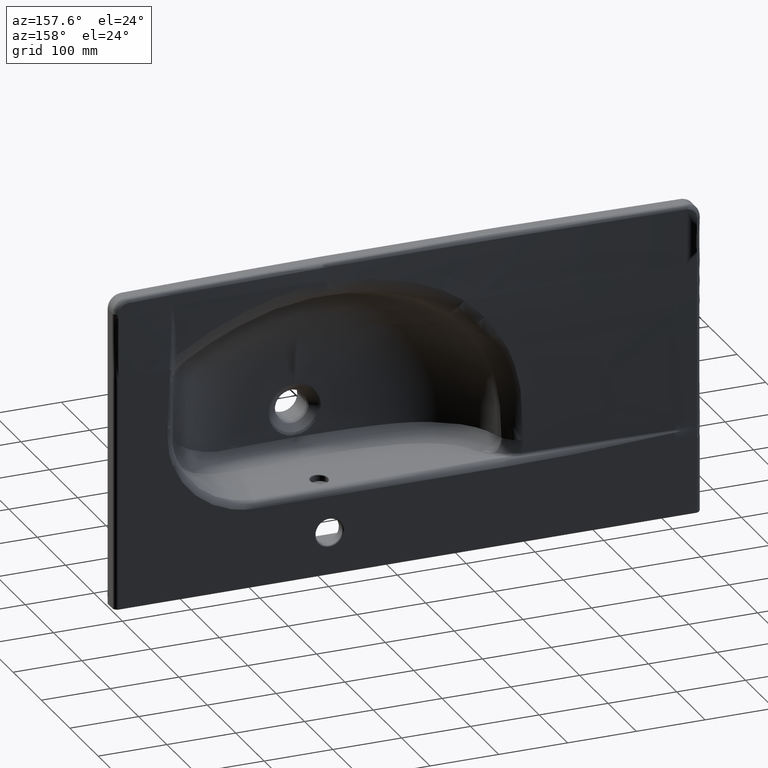
[diagram: clean part render]
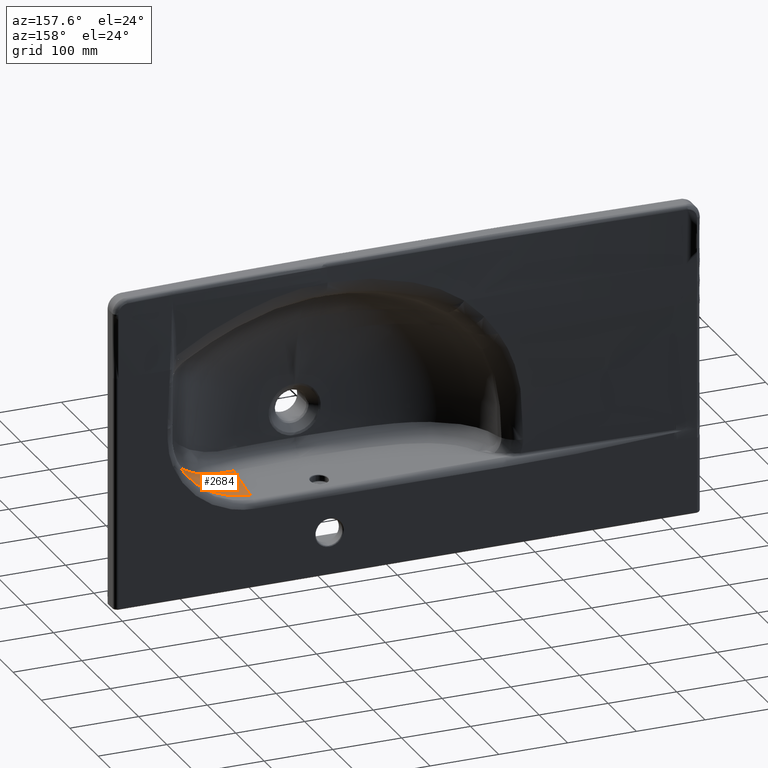
[diagram: same view with one face highlighted and labeled with its STEP entity id]
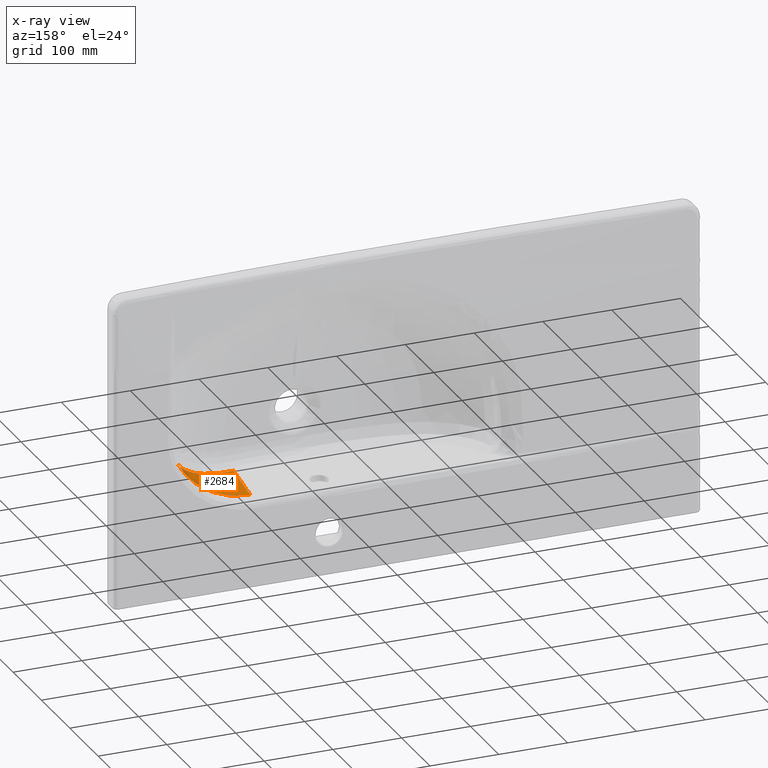
[diagram: x-ray of the same camera — body ghosted, the highlighted face saturated]
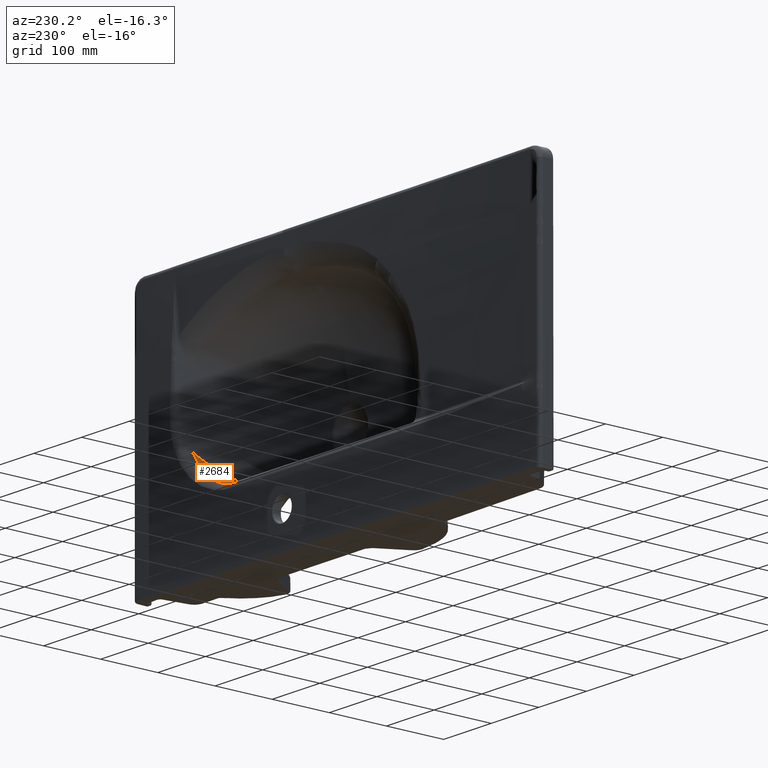
[diagram: same view with one face highlighted and labeled with its STEP entity id]
A machine part, auxiliary view. The second image highlights one B-rep face of the part: STEP entity #2684.
The next image is the same camera in x-ray: the body ghosted, the highlighted face saturated — about 0% of this face is hidden behind the body in this view.
A second angle (auxiliary view) of the same face is appended — the face is thin or edge-on in the first view.
In plain terms, the highlighted face is a SurfaceOfExtrusion surface.
Its self-contained STEP definition (entity closure, byte-faithful):
#154=SURFACE_OF_LINEAR_EXTRUSION('',#18505,#1539);
#1539=VECTOR('',#21273,1.);
#2684=ADVANCED_FACE('',(#4405),#154,.T.);
#4405=FACE_OUTER_BOUND('',#5711,.T.);
#5711=EDGE_LOOP('',(#7502,#7503,#7504));
#7502=ORIENTED_EDGE('',*,*,#15449,.T.);
#7503=ORIENTED_EDGE('',*,*,#15453,.F.);
#7504=ORIENTED_EDGE('',*,*,#15454,.T.);
#13618=VERTEX_POINT('',#31263);
#13619=VERTEX_POINT('',#31331);
#13622=VERTEX_POINT('',#31900);
#15449=EDGE_CURVE('',#13619,#13618,#18499,.T.);
#15453=EDGE_CURVE('',#13622,#13618,#18503,.T.);
#15454=EDGE_CURVE('',#13622,#13619,#18504,.T.);
#18499=B_SPLINE_CURVE_WITH_KNOTS('',3,(#31264,#31265,#31266,#31267,#31268,
#31269,#31270,#31271,#31272,#31273,#31274,#31275,#31276,#31277,#31278,#31279,
#31280,#31281,#31282,#31283,#31284,#31285,#31286,#31287,#31288,#31289,#31290,
#31291,#31292,#31293,#31294,#31295,#31296,#31297,#31298,#31299,#31300,#31301,
#31302,#31303,#31304,#31305,#31306,#31307,#31308,#31309,#31310,#31311,#31312,
#31313,#31314,#31315,#31316,#31317,#31318,#31319,#31320,#31321,#31322,#31323,
#31324,#31325,#31326,#31327,#31328,#31329,#31330),.UNSPECIFIED.,.F.,.F.,
(4,2,2,2,2,2,2,2,2,2,2,2,2,2,2,2,2,2,1,2,2,2,2,2,2,2,2,2,2,2,2,2,2,4),(0.,
0.249999999999995,0.281249999999994,0.289062499999994,0.296874999999994,
0.312499999999994,0.374999999999994,0.499999999999994,0.562499999999994,
0.578124999999994,0.593749999999994,0.624999999999994,0.656249999999993,
0.687499999999993,0.718749999999993,0.734374999999993,0.742187499999992,
0.744140624999992,0.746093749999992,0.749999999999992,0.765624999999991,
0.773437499999991,0.777343749999991,0.779296874999991,0.78124999999999,
0.812499999999991,0.874999999999993,0.890624999999994,0.898437499999994,
0.902343749999994,0.906249999999995,0.921874999999996,0.937499999999996,
1.),.UNSPECIFIED.);
#18503=B_SPLINE_CURVE_WITH_KNOTS('',3,(#31886,#31887,#31888,#31889,#31890,
#31891,#31892,#31893,#31894,#31895,#31896,#31897,#31898,#31899),
 .UNSPECIFIED.,.F.,.F.,(4,2,2,2,2,2,4),(0.,0.125,0.250000000000001,0.5,
0.75,0.875,1.),.UNSPECIFIED.);
#18504=B_SPLINE_CURVE_WITH_KNOTS('',1,(#31901,#31902),.UNSPECIFIED.,.F.,
 .F.,(2,2),(0.,1.),.UNSPECIFIED.);
#18505=B_SPLINE_CURVE_WITH_KNOTS('',3,(#31903,#31904,#31905,#31906,#31907,
#31908,#31909,#31910,#31911,#31912,#31913,#31914),.UNSPECIFIED.,.F.,.F.,
(4,2,2,2,2,4),(0.,0.247524752475248,0.495049504950495,0.742574257425743,
0.99009900990099,1.),.UNSPECIFIED.);
#21273=DIRECTION('',(-0.0695873743166637,-0.0695873743166655,-0.995145815783509));
#31263=CARTESIAN_POINT('',(211.420400529459,-122.379883358246,-21.9861246056574));
#31264=CARTESIAN_POINT('',(99.7749849557805,-62.1696870519228,-93.7317401591508));
#31265=CARTESIAN_POINT('',(114.019431165382,-62.0501635167995,-92.0224739735269));
#31266=CARTESIAN_POINT('',(127.53088126324,-64.3310374419478,-88.8429952005109));
#31267=CARTESIAN_POINT('',(141.240461948538,-68.5825774334697,-83.6364766173847));
#31268=CARTESIAN_POINT('',(142.743650394639,-69.0786209951936,-83.0353668519467));
#31269=CARTESIAN_POINT('',(144.596689706897,-69.7262870287461,-82.2557988849531));
#31270=CARTESIAN_POINT('',(144.879721348531,-69.8266872317117,-82.13514709426));
#31271=CARTESIAN_POINT('',(145.497849996806,-70.0480529507814,-81.8694032255859));
#31272=CARTESIAN_POINT('',(145.807312382374,-70.1601659099637,-81.7349853549615));
#31273=CARTESIAN_POINT('',(146.736839690253,-70.5008460995288,-81.3270865886815));
#31274=CARTESIAN_POINT('',(147.358037346099,-70.7337561045221,-81.0489599176523));
#31275=CARTESIAN_POINT('',(150.470809566018,-71.9277577378016,-79.6272661018758));
#31276=CARTESIAN_POINT('',(152.982936197586,-72.9772561000771,-78.3905279479279));
#31277=CARTESIAN_POINT('',(160.556362422508,-76.4280790086297,-74.378799521284));
#31278=CARTESIAN_POINT('',(165.656303235355,-79.1322809553661,-71.3023683790217));
#31279=CARTESIAN_POINT('',(173.241292433721,-83.8632735974724,-66.0700756227081));
#31280=CARTESIAN_POINT('',(175.758415913057,-85.5525906220947,-64.2230190514518));
#31281=CARTESIAN_POINT('',(178.872966599997,-87.8107309783761,-61.7838255170681));
#31282=CARTESIAN_POINT('',(179.494209766953,-88.2696315526443,-61.2895198794691));
#31283=CARTESIAN_POINT('',(180.733161712475,-89.2023249804188,-60.2877077638535));
#31284=CARTESIAN_POINT('',(181.377691616866,-89.696997476079,-59.7580758932133));
#31285=CARTESIAN_POINT('',(183.179492444906,-91.1057622401314,-58.2522594941977));
#31286=CARTESIAN_POINT('',(184.227849944532,-91.9576356228097,-57.3423569319038));
#31287=CARTESIAN_POINT('',(186.220741214562,-93.6203040177055,-55.5505319924566));
#31288=CARTESIAN_POINT('',(187.128043876369,-94.4017429000881,-54.7004014331121));
#31289=CARTESIAN_POINT('',(188.774605650119,-95.8501729971255,-53.0947813401758));
#31290=CARTESIAN_POINT('',(189.478637976897,-96.4833838208854,-52.3764027051025));
#31291=CARTESIAN_POINT('',(191.036469114714,-97.9127513701915,-50.7164517554621));
#31292=CARTESIAN_POINT('',(191.860871703069,-98.684752103827,-49.803301094472));
#31293=CARTESIAN_POINT('',(193.158343375913,-99.9343174620192,-48.3080130586191));
#31294=CARTESIAN_POINT('',(193.600985332725,-100.366122038242,-47.7886342828081));
#31295=CARTESIAN_POINT('',(194.279152445676,-101.037494312637,-46.9780186122036));
#31296=CARTESIAN_POINT('',(194.507574696706,-101.265229482932,-46.7025554013892));
#31297=CARTESIAN_POINT('',(194.795947901655,-101.55490732733,-46.3516405366632));
#31298=CARTESIAN_POINT('',(194.791814131436,-101.550775622387,-46.3566220738848));
#31299=CARTESIAN_POINT('',(194.845610530587,-101.604899478976,-46.2909619989905));
#31300=CARTESIAN_POINT('',(194.934366411911,-101.694262438561,-46.1825019814372));
#31301=CARTESIAN_POINT('',(195.047228649352,-101.808221781537,-46.0441222940998));
#31302=CARTESIAN_POINT('',(195.476533042184,-102.243136945686,-45.5163080416231));
#31303=CARTESIAN_POINT('',(195.990451449297,-102.766813967075,-44.8811696989475));
#31304=CARTESIAN_POINT('',(197.001245420766,-103.828609313682,-43.6071417646595));
#31305=CARTESIAN_POINT('',(197.378050418412,-104.228672020117,-43.1288986303435));
#31306=CARTESIAN_POINT('',(198.000046568923,-104.900250348234,-42.3308119014322));
#31307=CARTESIAN_POINT('',(198.216835923217,-105.136028436343,-42.0513284763844));
#31308=CARTESIAN_POINT('',(198.555759456264,-105.507898722349,-41.6118676073495));
#31309=CARTESIAN_POINT('',(198.596658452169,-105.55304124923,-41.5586283497994));
#31310=CARTESIAN_POINT('',(198.724117797555,-105.693650188059,-41.3927644389213));
#31311=CARTESIAN_POINT('',(198.787393644824,-105.763621460101,-41.31029097474));
#31312=CARTESIAN_POINT('',(199.855417722635,-106.947425247559,-39.9160429514095));
#31313=CARTESIAN_POINT('',(200.745332824934,-107.975426661237,-38.7213066032113));
#31314=CARTESIAN_POINT('',(203.102392924537,-110.773683569317,-35.4938133487373));
#31315=CARTESIAN_POINT('',(204.258990395255,-112.256185448696,-33.8181529058908));
#31316=CARTESIAN_POINT('',(205.26704157552,-113.57342670243,-32.3280623543021));
#31317=CARTESIAN_POINT('',(205.446576858829,-113.810207895241,-32.0602759778445));
#31318=CARTESIAN_POINT('',(205.683776982111,-114.124771522148,-31.704023518234));
#31319=CARTESIAN_POINT('',(205.757499003284,-114.222870453788,-31.5928314916684));
#31320=CARTESIAN_POINT('',(205.860167350137,-114.359820627717,-31.4373933302195));
#31321=CARTESIAN_POINT('',(205.882031252467,-114.388952620687,-31.4043469544571));
#31322=CARTESIAN_POINT('',(206.023433258045,-114.578182302136,-31.1891572815347));
#31323=CARTESIAN_POINT('',(206.094502903342,-114.673549813072,-31.0805488225482));
#31324=CARTESIAN_POINT('',(206.451660081844,-115.154168594926,-30.5324347692409));
#31325=CARTESIAN_POINT('',(206.733255375136,-115.536949235644,-30.093816389238));
#31326=CARTESIAN_POINT('',(207.374747684724,-116.42092456494,-29.0751906369131));
#31327=CARTESIAN_POINT('',(207.689215903404,-116.860004946811,-28.5662643440012));
#31328=CARTESIAN_POINT('',(209.231033046082,-119.040061813944,-26.0236828782246));
#31329=CARTESIAN_POINT('',(210.366864881225,-120.734914697903,-23.996122473839));
#31330=CARTESIAN_POINT('',(211.415881637419,-122.37119736144,-21.9767368242242));
#31331=CARTESIAN_POINT('',(99.7749356228727,-62.1792765351517,-93.7315083759201));
#31886=CARTESIAN_POINT('',(104.792069206503,-57.1527456979717,-21.9861362267995));
#31887=CARTESIAN_POINT('',(110.315628883656,-57.1527456979717,-21.9861362267995));
#31888=CARTESIAN_POINT('',(115.803047799582,-57.5355856945876,-21.9861362267995));
#31889=CARTESIAN_POINT('',(126.707434428295,-59.0475570623577,-21.9861362267995));
#31890=CARTESIAN_POINT('',(132.137608257388,-60.1853000754244,-21.9861362267995));
#31891=CARTESIAN_POINT('',(147.933417831099,-64.6364964670659,-21.9861362267995));
#31892=CARTESIAN_POINT('',(157.990086216403,-69.0243321423009,-21.9861362267995));
#31893=CARTESIAN_POINT('',(176.787515845251,-80.5421649223507,-21.9861362267995));
#31894=CARTESIAN_POINT('',(185.221297769554,-87.4477925290681,-21.9861362267995));
#31895=CARTESIAN_POINT('',(196.408390449451,-99.5455298596908,-21.9861362267995));
#31896=CARTESIAN_POINT('',(199.883151094963,-103.872379905019,-21.9861362267995));
#31897=CARTESIAN_POINT('',(206.131490792147,-112.842281269809,-21.9861362267995));
#31898=CARTESIAN_POINT('',(208.935911328121,-117.516395786544,-21.9861362267995));
#31899=CARTESIAN_POINT('',(211.419534282487,-122.380294294015,-21.9861362267995));
#31900=CARTESIAN_POINT('',(104.792069206503,-57.1527456979717,-21.9861362267995));
#31901=CARTESIAN_POINT('',(104.792069206503,-57.1527456979717,-21.9861362267995));
#31902=CARTESIAN_POINT('',(99.7751092044832,-62.1697056999915,-93.7320068389578));
#31903=CARTESIAN_POINT('',(222.573165899389,-178.787021067444,-49.5376473674644));
#31904=CARTESIAN_POINT('',(222.497152980866,-163.16567798469,-50.6246827464583));
#31905=CARTESIAN_POINT('',(219.325008045282,-147.550405702575,-51.4947909724084));
#31906=CARTESIAN_POINT('',(207.263688935736,-118.671404275232,-52.6707978811706));
#31907=CARTESIAN_POINT('',(198.379202058081,-105.418898150929,-52.9762395415966));
#31908=CARTESIAN_POINT('',(176.233602784724,-83.2732988775724,-52.9762395415966));
#31909=CARTESIAN_POINT('',(162.981096660422,-74.3888119999176,-52.6707978811706));
#31910=CARTESIAN_POINT('',(134.102095233079,-62.3274928903715,-51.4947909724084));
#31911=CARTESIAN_POINT('',(118.486822950964,-59.1553479547873,-50.6246827464583));
#31912=CARTESIAN_POINT('',(102.2406261449,-59.0762945195236,-49.4941659523046));
#31913=CARTESIAN_POINT('',(101.61577242159,-59.0732540027827,-49.4506845371449));
#31914=CARTESIAN_POINT('',(100.99091869828,-59.0702134860417,-49.4072031219852));